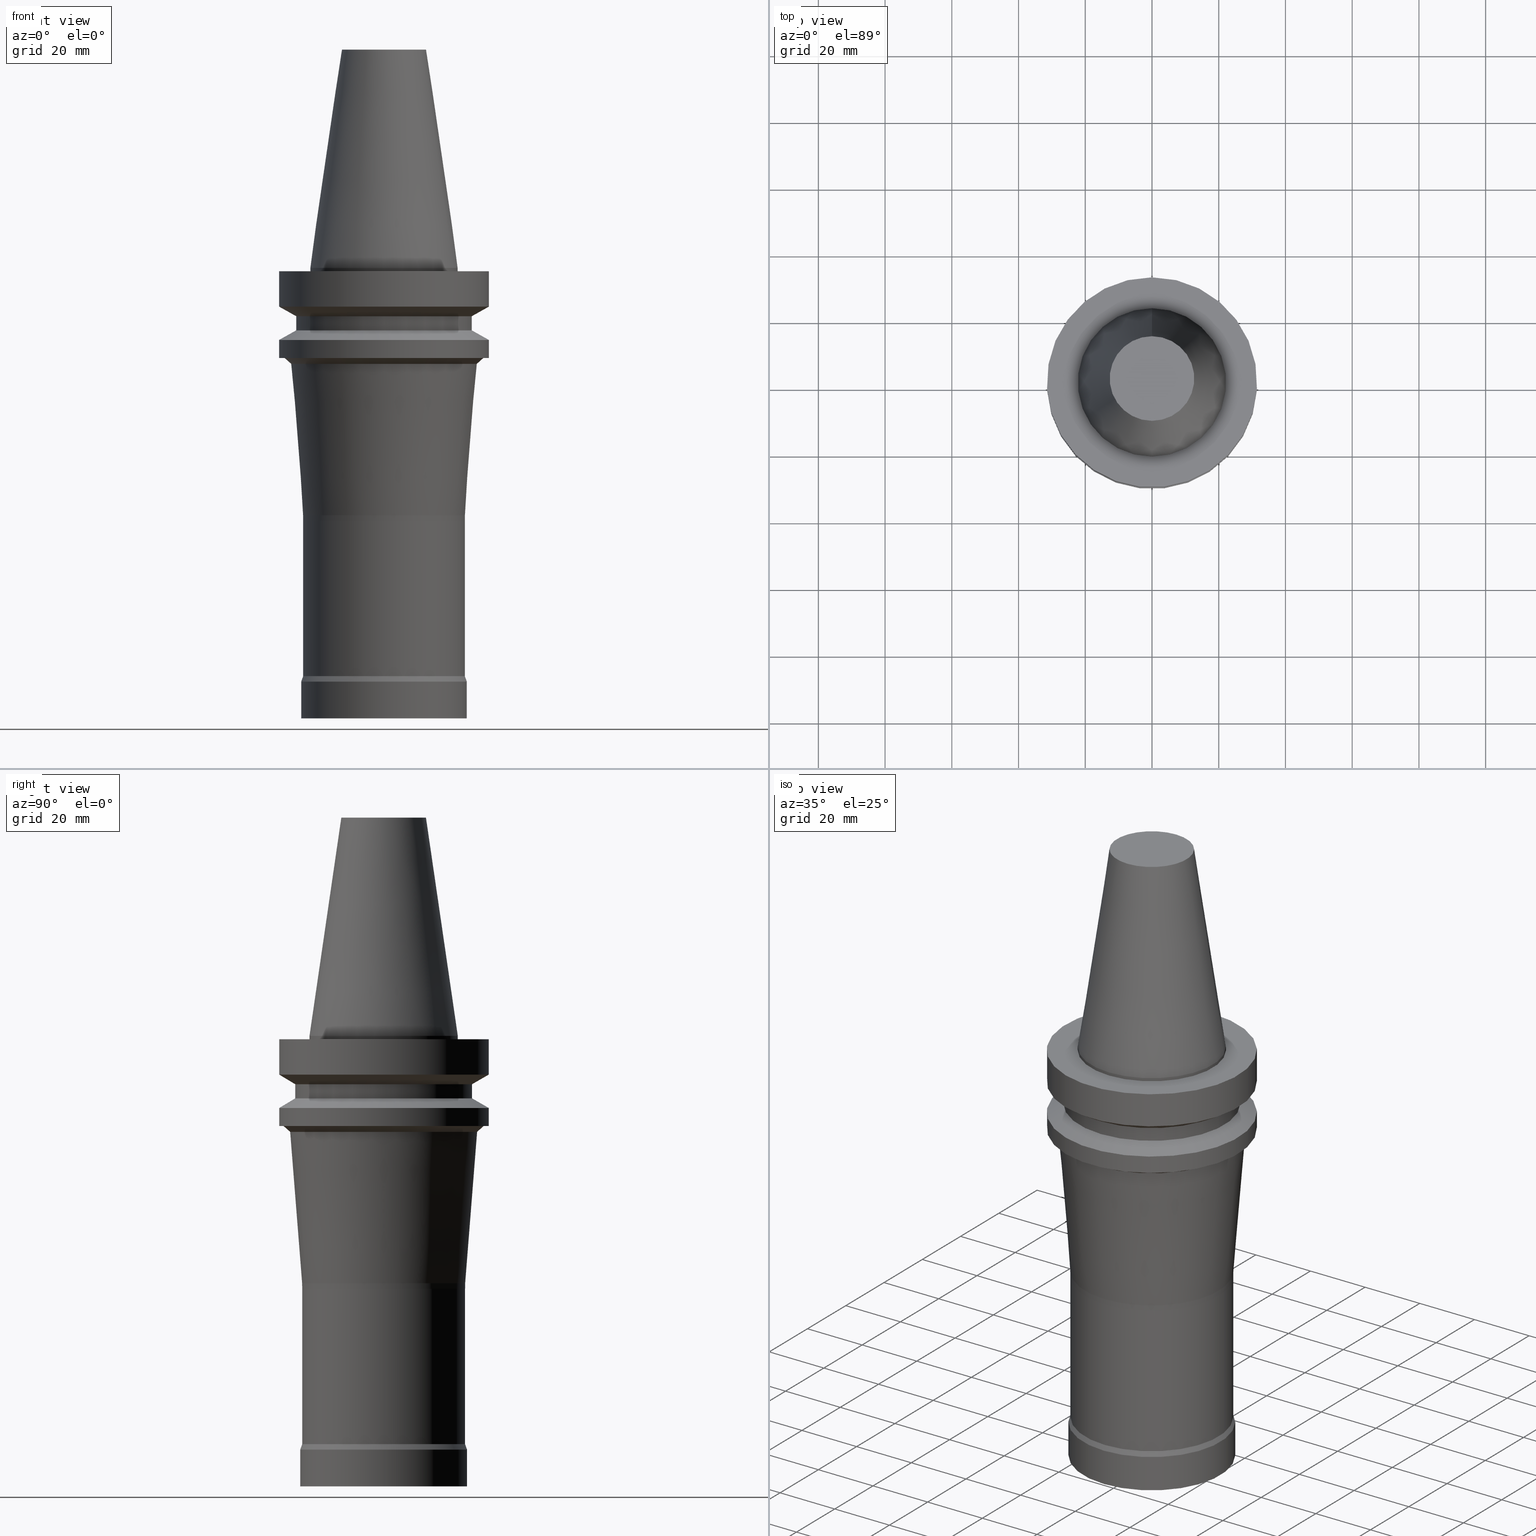
[diagram: canonical four-view strip — front | top / right | iso, engineering-drawing reading convention]
A machine part, canonical four-view strip (front | top / right | iso — engineering-drawing reading convention). The complete STEP part file that produces these views, byte-faithful:
ISO-10303-21;
HEADER;
FILE_DESCRIPTION((''),'1');
FILE_NAME('//Big_tech03/bigt/Translate/21_\X2\8F2A90ED7DDA\X0\-DXF/71_\X2\5207524A5DE55177\X0\/01_\X2\30A830F330C930DF30EB52A05DE5\X0\/01_\X2\30D530EB30AB30C330C830DF30EB\X0\ FCM/BBT/BBT40/BBT40-FCM50115-135.stp','2012-05-30T03:58:35',(''),(''),'Spatial Interop R18','Kubotek KeyCreator V8.5.1 (14335)',' ');
FILE_SCHEMA(('CONFIG_CONTROL_DESIGN'));
ENDSEC;
DATA;
#1=DESIGN_CONTEXT('',#27,'design');
#2=APPLICATION_PROTOCOL_DEFINITION('INTERNATIONAL STANDARD','config_control_design',1994,#27);
#3=PRODUCT_CATEGORY_RELATIONSHIP('NONE','NONE',#28,#29);
#4=DATE_AND_TIME(#30,#31);
#5=DATE_TIME_ROLE('creation_date');
#6=DATE_TIME_ROLE('classification_date');
#7=PERSON_AND_ORGANIZATION_ROLE('creator');
#8=PERSON_AND_ORGANIZATION_ROLE('design_supplier');
#9=PERSON_AND_ORGANIZATION_ROLE('classification_officer');
#10=PERSON_AND_ORGANIZATION_ROLE('design_owner');
#11=APPROVAL_PERSON_ORGANIZATION(#32,#33,#34);
#12=APPROVAL_DATE_TIME(#4,#33);
#13=CC_DESIGN_APPROVAL(#33,(#35,#36,#37));
#14=CC_DESIGN_DATE_AND_TIME_ASSIGNMENT(#4,#5,(#37));
#15=CC_DESIGN_DATE_AND_TIME_ASSIGNMENT(#4,#6,(#35));
#16=CC_DESIGN_PERSON_AND_ORGANIZATION_ASSIGNMENT(#32,#10,(#38));
#17=CC_DESIGN_PERSON_AND_ORGANIZATION_ASSIGNMENT(#32,#7,(#37));
#18=CC_DESIGN_PERSON_AND_ORGANIZATION_ASSIGNMENT(#32,#7,(#36));
#19=CC_DESIGN_PERSON_AND_ORGANIZATION_ASSIGNMENT(#32,#8,(#36));
#20=CC_DESIGN_SECURITY_CLASSIFICATION(#35,(#36));
#21=CC_DESIGN_PERSON_AND_ORGANIZATION_ASSIGNMENT(#32,#9,(#35));
#22=SHAPE_DEFINITION_REPRESENTATION(#39,#40);
#23= (GEOMETRIC_REPRESENTATION_CONTEXT(3)GLOBAL_UNCERTAINTY_ASSIGNED_CONTEXT((#43))GLOBAL_UNIT_ASSIGNED_CONTEXT((#45,#46,#47))REPRESENTATION_CONTEXT('NONE','WORKSPACE'));
#27=APPLICATION_CONTEXT('CONFIGURATION CONTROLLED 3D DESIGNS OF MECHANICAL PARTS AND ASSEMBLIES');
#28=PRODUCT_CATEGORY('part','NONE');
#29=PRODUCT_RELATED_PRODUCT_CATEGORY('detail',' ',(#38));
#30=CALENDAR_DATE(2012,30,4);
#31=LOCAL_TIME(12,58,35.0,#49);
#32=PERSON_AND_ORGANIZATION(#50,#51);
#33=APPROVAL(#52,'SOLID MODEL');
#34=APPROVAL_ROLE('APPROVED');
#35=SECURITY_CLASSIFICATION('','',#53);
#36=PRODUCT_DEFINITION_FORMATION_WITH_SPECIFIED_SOURCE(' ','NONE',#38,.NOT_KNOWN.);
#37=PRODUCT_DEFINITION('NONE','NONE',#36,#1);
#38=PRODUCT('1','1','PART-1-DESC',(#54));
#39=PRODUCT_DEFINITION_SHAPE('NONE','NONE',#37);
#40=ADVANCED_BREP_SHAPE_REPRESENTATION('1',(#55,#56),#23);
#43=UNCERTAINTY_MEASURE_WITH_UNIT(LENGTH_MEASURE(1.0E-006),#45,'','');
#45= (CONVERSION_BASED_UNIT('MILLIMETRE',#59)LENGTH_UNIT()NAMED_UNIT(#62));
#46= (NAMED_UNIT(#64)PLANE_ANGLE_UNIT()SI_UNIT($,.RADIAN.));
#47= (NAMED_UNIT(#64)SOLID_ANGLE_UNIT()SI_UNIT($,.STERADIAN.));
#49=COORDINATED_UNIVERSAL_TIME_OFFSET(9,0,.AHEAD.);
#50=PERSON('','UNSPECIFIED',$,$,$,$);
#51=ORGANIZATION('UNSPECIFIED','UNSPECIFIED','UNSPECIFIED');
#52=APPROVAL_STATUS('approved');
#53=SECURITY_CLASSIFICATION_LEVEL('unclassified');
#54=MECHANICAL_CONTEXT('',#27,'mechanical');
#55=MANIFOLD_SOLID_BREP('1',#70);
#56=AXIS2_PLACEMENT_3D('',#71,#72,#73);
#59=LENGTH_MEASURE_WITH_UNIT(LENGTH_MEASURE(1.0),#74);
#62=DIMENSIONAL_EXPONENTS(1.0,0.0,0.0,0.0,0.0,0.0,0.0);
#64=DIMENSIONAL_EXPONENTS(0.0,0.0,0.0,0.0,0.0,0.0,0.0);
#70=CLOSED_SHELL('',(#75,#76,#77,#78,#79,#80,#81,#82,#83,#84,#85,#86,#87,#88,#89,#90,#91));
#71=CARTESIAN_POINT('',(0.0,0.0,0.0));
#72=DIRECTION('',(0.0,0.0,1.0));
#73=DIRECTION('',(1.0,0.0,0.0));
#74= (NAMED_UNIT(#62)LENGTH_UNIT()SI_UNIT(.MILLI.,.METRE.));
#75=ADVANCED_FACE('',(#93,#94),#95,.T.);
#76=ADVANCED_FACE('',(#96,#97),#98,.T.);
#77=ADVANCED_FACE('',(#99,#100),#101,.T.);
#78=ADVANCED_FACE('',(#102,#103),#104,.T.);
#79=ADVANCED_FACE('',(#105,#106),#107,.T.);
#80=ADVANCED_FACE('',(#108,#109),#110,.T.);
#81=ADVANCED_FACE('',(#111,#112),#113,.T.);
#82=ADVANCED_FACE('',(#114,#115),#116,.T.);
#83=ADVANCED_FACE('',(#117,#118),#119,.T.);
#84=ADVANCED_FACE('',(#120,#121),#122,.T.);
#85=ADVANCED_FACE('',(#123,#124),#125,.T.);
#86=ADVANCED_FACE('',(#126,#127),#128,.T.);
#87=ADVANCED_FACE('',(#129,#130),#131,.T.);
#88=ADVANCED_FACE('',(#132),#133,.T.);
#89=ADVANCED_FACE('',(#134,#135),#136,.T.);
#90=ADVANCED_FACE('',(#137),#138,.T.);
#91=ADVANCED_FACE('',(#139,#140),#141,.T.);
#93=FACE_OUTER_BOUND('',#142,.T.);
#94=FACE_BOUND('',#143,.T.);
#95=PLANE('',#144);
#96=FACE_BOUND('',#145,.T.);
#97=FACE_BOUND('',#146,.T.);
#98=CYLINDRICAL_SURFACE('',#147,31.5);
#99=FACE_BOUND('',#148,.T.);
#100=FACE_BOUND('',#149,.T.);
#101=CONICAL_SURFACE('',#150,29.0,1.04719755058882);
#102=FACE_BOUND('',#151,.T.);
#103=FACE_BOUND('',#152,.T.);
#104=CYLINDRICAL_SURFACE('',#153,26.5);
#105=FACE_BOUND('',#154,.T.);
#106=FACE_BOUND('',#155,.T.);
#107=CONICAL_SURFACE('',#156,29.0,1.04719755058882);
#108=FACE_BOUND('',#157,.T.);
#109=FACE_BOUND('',#158,.T.);
#110=CYLINDRICAL_SURFACE('',#159,31.5);
#111=FACE_BOUND('',#160,.T.);
#112=FACE_OUTER_BOUND('',#161,.T.);
#113=PLANE('',#162);
#114=FACE_BOUND('',#163,.T.);
#115=FACE_BOUND('',#164,.T.);
#116=CONICAL_SURFACE('',#165,29.007730230711,0.84760833420394);
#117=FACE_BOUND('',#166,.T.);
#118=FACE_BOUND('',#167,.T.);
#119=CONICAL_SURFACE('',#168,26.2216072133036,0.0788715157919261);
#120=FACE_BOUND('',#169,.T.);
#121=FACE_BOUND('',#170,.T.);
#122=CONICAL_SURFACE('',#171,24.4138769825926,0.0166602918453237);
#123=FACE_BOUND('',#172,.T.);
#124=FACE_BOUND('',#173,.T.);
#125=CYLINDRICAL_SURFACE('',#174,24.4);
#126=FACE_BOUND('',#175,.T.);
#127=FACE_BOUND('',#176,.T.);
#128=CONICAL_SURFACE('',#177,24.7,0.349471099112729);
#129=FACE_BOUND('',#178,.T.);
#130=FACE_BOUND('',#179,.T.);
#131=CYLINDRICAL_SURFACE('',#180,25.0);
#132=FACE_OUTER_BOUND('',#181,.T.);
#133=PLANE('',#182);
#134=FACE_BOUND('',#183,.T.);
#135=FACE_BOUND('',#184,.T.);
#136=CYLINDRICAL_SURFACE('',#185,22.225);
#137=FACE_OUTER_BOUND('',#186,.T.);
#138=PLANE('',#187);
#139=FACE_BOUND('',#188,.T.);
#140=FACE_BOUND('',#189,.T.);
#141=CONICAL_SURFACE('',#190,17.4562500026599,0.144812498159292);
#142=EDGE_LOOP('',(#191));
#143=EDGE_LOOP('',(#192));
#144=AXIS2_PLACEMENT_3D('',#193,#194,#195);
#145=EDGE_LOOP('',(#196));
#146=EDGE_LOOP('',(#197));
#147=AXIS2_PLACEMENT_3D('',#198,#199,#200);
#148=EDGE_LOOP('',(#201));
#149=EDGE_LOOP('',(#202));
#150=AXIS2_PLACEMENT_3D('',#203,#204,#205);
#151=EDGE_LOOP('',(#206));
#152=EDGE_LOOP('',(#207));
#153=AXIS2_PLACEMENT_3D('',#208,#209,#210);
#154=EDGE_LOOP('',(#211));
#155=EDGE_LOOP('',(#212));
#156=AXIS2_PLACEMENT_3D('',#213,#214,#215);
#157=EDGE_LOOP('',(#216));
#158=EDGE_LOOP('',(#217));
#159=AXIS2_PLACEMENT_3D('',#218,#219,#220);
#160=EDGE_LOOP('',(#221));
#161=EDGE_LOOP('',(#222));
#162=AXIS2_PLACEMENT_3D('',#223,#224,#225);
#163=EDGE_LOOP('',(#226));
#164=EDGE_LOOP('',(#227));
#165=AXIS2_PLACEMENT_3D('',#228,#229,#230);
#166=EDGE_LOOP('',(#231));
#167=EDGE_LOOP('',(#232));
#168=AXIS2_PLACEMENT_3D('',#233,#234,#235);
#169=EDGE_LOOP('',(#236));
#170=EDGE_LOOP('',(#237));
#171=AXIS2_PLACEMENT_3D('',#238,#239,#240);
#172=EDGE_LOOP('',(#241));
#173=EDGE_LOOP('',(#242));
#174=AXIS2_PLACEMENT_3D('',#243,#244,#245);
#175=EDGE_LOOP('',(#246));
#176=EDGE_LOOP('',(#247));
#177=AXIS2_PLACEMENT_3D('',#248,#249,#250);
#178=EDGE_LOOP('',(#251));
#179=EDGE_LOOP('',(#252));
#180=AXIS2_PLACEMENT_3D('',#253,#254,#255);
#181=EDGE_LOOP('',(#256));
#182=AXIS2_PLACEMENT_3D('',#257,#258,#259);
#183=EDGE_LOOP('',(#260));
#184=EDGE_LOOP('',(#261));
#185=AXIS2_PLACEMENT_3D('',#262,#263,#264);
#186=EDGE_LOOP('',(#265));
#187=AXIS2_PLACEMENT_3D('',#266,#267,#268);
#188=EDGE_LOOP('',(#269));
#189=EDGE_LOOP('',(#270));
#190=AXIS2_PLACEMENT_3D('',#271,#272,#273);
#191=ORIENTED_EDGE('',*,*,#274,.F.);
#192=ORIENTED_EDGE('',*,*,#275,.T.);
#193=CARTESIAN_POINT('',(6.12323399573673E-017,26.8625,-0.999999999999997));
#194=DIRECTION('',(-6.12323399573677E-017,-1.22464679914735E-016,1.0));
#195=DIRECTION('',(1.23259516440783E-032,-1.0,-1.22464679914735E-016));
#196=ORIENTED_EDGE('',*,*,#276,.F.);
#197=ORIENTED_EDGE('',*,*,#274,.T.);
#198=CARTESIAN_POINT('',(3.85763741731416E-016,7.71527483462832E-016,-6.3));
#199=DIRECTION('',(-6.12323399573677E-017,-1.22464679914735E-016,1.0));
#200=DIRECTION('',(-1.23259516440783E-032,1.0,1.22464679914735E-016));
#201=ORIENTED_EDGE('',*,*,#277,.F.);
#202=ORIENTED_EDGE('',*,*,#276,.T.);
#203=CARTESIAN_POINT('',(7.9867641352326E-016,1.59735282704652E-015,-13.043375675));
#204=DIRECTION('',(-6.12323399573677E-017,-1.22464679914735E-016,1.0));
#205=DIRECTION('',(-1.23259516440783E-032,1.0,1.22464679914735E-016));
#206=ORIENTED_EDGE('',*,*,#278,.F.);
#207=ORIENTED_EDGE('',*,*,#277,.T.);
#208=CARTESIAN_POINT('',(1.0164568432923E-015,2.03291368658461E-015,-16.6));
#209=DIRECTION('',(-6.12323399573677E-017,-1.22464679914735E-016,1.0));
#210=DIRECTION('',(-1.23259516440783E-032,1.0,1.22464679914735E-016));
#211=ORIENTED_EDGE('',*,*,#279,.F.);
#212=ORIENTED_EDGE('',*,*,#278,.T.);
#213=CARTESIAN_POINT('',(1.23423727306135E-015,2.46847454612269E-015,-20.156624325));
#214=DIRECTION('',(6.12323399573677E-017,1.22464679914735E-016,-1.0));
#215=DIRECTION('',(-1.23259516440783E-032,1.0,1.22464679914735E-016));
#216=ORIENTED_EDGE('',*,*,#280,.F.);
#217=ORIENTED_EDGE('',*,*,#279,.T.);
#218=CARTESIAN_POINT('',(1.48794586096403E-015,2.97589172192807E-015,-24.3));
#219=DIRECTION('',(-6.12323399573677E-017,-1.22464679914735E-016,1.0));
#220=DIRECTION('',(-1.23259516440783E-032,1.0,1.22464679914735E-016));
#221=ORIENTED_EDGE('',*,*,#281,.F.);
#222=ORIENTED_EDGE('',*,*,#280,.T.);
#223=CARTESIAN_POINT('',(1.65327317884893E-015,30.75,-27.0));
#224=DIRECTION('',(6.12323399573677E-017,1.22464679914735E-016,-1.0));
#225=DIRECTION('',(-1.23259516440783E-032,1.0,1.22464679914735E-016));
#226=ORIENTED_EDGE('',*,*,#282,.F.);
#227=ORIENTED_EDGE('',*,*,#281,.T.);
#228=CARTESIAN_POINT('',(1.7069066113328E-015,3.4138132226656E-015,-27.8759004232275));
#229=DIRECTION('',(-6.12323399573677E-017,-1.22464679914735E-016,1.0));
#230=DIRECTION('',(-1.23259516440783E-032,1.0,1.22464679914735E-016));
#231=ORIENTED_EDGE('',*,*,#283,.F.);
#232=ORIENTED_EDGE('',*,*,#282,.T.);
#233=CARTESIAN_POINT('',(3.150318994572E-015,6.300637989144E-015,-51.4486135392732));
#234=DIRECTION('',(-6.12323399573677E-017,-1.22464679914735E-016,1.0));
#235=DIRECTION('',(-1.23259516440783E-032,1.0,1.22464679914735E-016));
#236=ORIENTED_EDGE('',*,*,#284,.F.);
#237=ORIENTED_EDGE('',*,*,#283,.T.);
#238=CARTESIAN_POINT('',(4.59109594131173E-015,9.18219188262345E-015,-74.9782867110456));
#239=DIRECTION('',(-6.12323399573676E-017,-1.22464679914735E-016,1.0));
#240=DIRECTION('',(-1.23259516440783E-032,1.0,1.22464679914735E-016));
#241=ORIENTED_EDGE('',*,*,#285,.F.);
#242=ORIENTED_EDGE('',*,*,#284,.T.);
#243=CARTESIAN_POINT('',(6.0670452723855E-015,1.2134090544771E-014,-99.08236851));
#244=DIRECTION('',(-6.12323399573677E-017,-1.22464679914735E-016,1.0));
#245=DIRECTION('',(-1.23259516440783E-032,1.0,1.22464679914735E-016));
#246=ORIENTED_EDGE('',*,*,#286,.F.);
#247=ORIENTED_EDGE('',*,*,#285,.T.);
#248=CARTESIAN_POINT('',(7.54240338109424E-015,1.50848067621885E-014,-123.176794915));
#249=DIRECTION('',(6.12323399573677E-017,1.22464679914735E-016,-1.0));
#250=DIRECTION('',(-1.23259516440783E-032,1.0,1.22464679914735E-016));
#251=ORIENTED_EDGE('',*,*,#287,.F.);
#252=ORIENTED_EDGE('',*,*,#286,.T.);
#253=CARTESIAN_POINT('',(7.92958802447911E-015,1.58591760489582E-014,-129.5));
#254=DIRECTION('',(-6.12323399573677E-017,-1.22464679914735E-016,1.0));
#255=DIRECTION('',(-1.23259516440783E-032,1.0,1.22464679914735E-016));
#256=ORIENTED_EDGE('',*,*,#287,.T.);
#257=CARTESIAN_POINT('',(8.26636589424463E-015,12.5,-135.0));
#258=DIRECTION('',(6.12323399573677E-017,1.22464679914735E-016,-1.0));
#259=DIRECTION('',(-1.23259516440783E-032,1.0,1.22464679914735E-016));
#260=ORIENTED_EDGE('',*,*,#275,.F.);
#261=ORIENTED_EDGE('',*,*,#288,.T.);
#262=CARTESIAN_POINT('',(3.06161699786839E-017,6.12323399573677E-017,-0.500000000000001));
#263=DIRECTION('',(-6.12323399573677E-017,-1.22464679914735E-016,1.0));
#264=DIRECTION('',(-1.23259516440783E-032,1.0,1.22464679914735E-016));
#265=ORIENTED_EDGE('',*,*,#289,.F.);
#266=CARTESIAN_POINT('',(-4.00459503321185E-015,6.34375000265984,65.4));
#267=DIRECTION('',(-6.12323399573677E-017,-1.22464679914735E-016,1.0));
#268=DIRECTION('',(1.23259516440783E-032,-1.0,-1.22464679914735E-016));
#269=ORIENTED_EDGE('',*,*,#288,.F.);
#270=ORIENTED_EDGE('',*,*,#289,.T.);
#271=CARTESIAN_POINT('',(-2.00229751660592E-015,-4.00459503321184E-015,32.7));
#272=DIRECTION('',(6.12323399573677E-017,1.22464679914735E-016,-1.0));
#273=DIRECTION('',(-1.23259516440783E-032,1.0,1.22464679914735E-016));
#274=EDGE_CURVE('',#290,#290,#291,.T.);
#275=EDGE_CURVE('',#292,#292,#293,.T.);
#276=EDGE_CURVE('',#294,#294,#295,.T.);
#277=EDGE_CURVE('',#296,#296,#297,.T.);
#278=EDGE_CURVE('',#298,#298,#299,.T.);
#279=EDGE_CURVE('',#300,#300,#301,.T.);
#280=EDGE_CURVE('',#302,#302,#303,.T.);
#281=EDGE_CURVE('',#304,#304,#305,.T.);
#282=EDGE_CURVE('',#306,#306,#307,.T.);
#283=EDGE_CURVE('',#308,#308,#309,.T.);
#284=EDGE_CURVE('',#310,#310,#311,.T.);
#285=EDGE_CURVE('',#312,#312,#313,.T.);
#286=EDGE_CURVE('',#314,#314,#315,.T.);
#287=EDGE_CURVE('',#316,#316,#317,.T.);
#288=EDGE_CURVE('',#318,#318,#319,.T.);
#289=EDGE_CURVE('',#320,#320,#321,.T.);
#290=VERTEX_POINT('',#322);
#291=CIRCLE('',#323,31.5);
#292=VERTEX_POINT('',#324);
#293=CIRCLE('',#325,22.225);
#294=VERTEX_POINT('',#326);
#295=CIRCLE('',#327,31.5);
#296=VERTEX_POINT('',#328);
#297=CIRCLE('',#329,26.5);
#298=VERTEX_POINT('',#330);
#299=CIRCLE('',#331,26.5);
#300=VERTEX_POINT('',#332);
#301=CIRCLE('',#333,31.5);
#302=VERTEX_POINT('',#334);
#303=CIRCLE('',#335,31.5);
#304=VERTEX_POINT('',#336);
#305=CIRCLE('',#337,30.0);
#306=VERTEX_POINT('',#338);
#307=CIRCLE('',#339,28.0154604614219);
#308=VERTEX_POINT('',#340);
#309=CIRCLE('',#341,24.4277539651853);
#310=VERTEX_POINT('',#342);
#311=CIRCLE('',#343,24.4);
#312=VERTEX_POINT('',#344);
#313=CIRCLE('',#345,24.4);
#314=VERTEX_POINT('',#346);
#315=CIRCLE('',#347,25.0);
#316=VERTEX_POINT('',#348);
#317=CIRCLE('',#349,25.0);
#318=VERTEX_POINT('',#350);
#319=CIRCLE('',#351,22.225);
#320=VERTEX_POINT('',#352);
#321=CIRCLE('',#353,12.6875000053197);
#322=CARTESIAN_POINT('',(6.12323399573673E-017,31.5,-0.999999999999996));
#323=AXIS2_PLACEMENT_3D('',#354,#355,#356);
#324=CARTESIAN_POINT('',(6.12323399573674E-017,22.225,-0.999999999999997));
#325=AXIS2_PLACEMENT_3D('',#357,#358,#359);
#326=CARTESIAN_POINT('',(7.10295143505464E-016,31.5,-11.6));
#327=AXIS2_PLACEMENT_3D('',#360,#361,#362);
#328=CARTESIAN_POINT('',(8.87057683541055E-016,26.5,-14.48675135));
#329=AXIS2_PLACEMENT_3D('',#363,#364,#365);
#330=CARTESIAN_POINT('',(1.14585600304355E-015,26.5,-18.71324865));
#331=AXIS2_PLACEMENT_3D('',#366,#367,#368);
#332=CARTESIAN_POINT('',(1.32261854307914E-015,31.5,-21.6));
#333=AXIS2_PLACEMENT_3D('',#369,#370,#371);
#334=CARTESIAN_POINT('',(1.65327317884893E-015,31.5,-27.0));
#335=AXIS2_PLACEMENT_3D('',#372,#373,#374);
#336=CARTESIAN_POINT('',(1.65327317884893E-015,30.0,-27.0));
#337=AXIS2_PLACEMENT_3D('',#375,#376,#377);
#338=CARTESIAN_POINT('',(1.76054004381667E-015,28.015460461422,-28.7518008464551));
#339=AXIS2_PLACEMENT_3D('',#378,#379,#380);
#340=CARTESIAN_POINT('',(4.54009794532733E-015,24.4277539651853,-74.1454262320912));
#341=AXIS2_PLACEMENT_3D('',#381,#382,#383);
#342=CARTESIAN_POINT('',(4.64209393729612E-015,24.4,-75.81114719));
#343=AXIS2_PLACEMENT_3D('',#384,#385,#386);
#344=CARTESIAN_POINT('',(7.49199660747488E-015,24.4,-122.35358983));
#345=AXIS2_PLACEMENT_3D('',#387,#388,#389);
#346=CARTESIAN_POINT('',(7.59281015471359E-015,25.0,-124.0));
#347=AXIS2_PLACEMENT_3D('',#390,#391,#392);
#348=CARTESIAN_POINT('',(8.26636589424463E-015,25.0,-135.0));
#349=AXIS2_PLACEMENT_3D('',#393,#394,#395);
#350=CARTESIAN_POINT('',(-1.88218999349326E-031,22.225,1.32177751110499E-015));
#351=AXIS2_PLACEMENT_3D('',#396,#397,#398);
#352=CARTESIAN_POINT('',(-4.00459503321185E-015,12.6875000053197,65.4));
#353=AXIS2_PLACEMENT_3D('',#399,#400,#401);
#354=CARTESIAN_POINT('',(6.12323399573677E-017,1.22464679914735E-016,-1.0));
#355=DIRECTION('',(6.12323399573677E-017,1.22464679914735E-016,-1.0));
#356=DIRECTION('',(-1.23259516440783E-032,1.0,1.22464679914735E-016));
#357=CARTESIAN_POINT('',(6.12323399573677E-017,1.22464679914735E-016,-1.0));
#358=DIRECTION('',(6.12323399573677E-017,1.22464679914735E-016,-1.0));
#359=DIRECTION('',(-1.23259516440783E-032,1.0,1.22464679914735E-016));
#360=CARTESIAN_POINT('',(7.10295143505465E-016,1.42059028701093E-015,-11.6));
#361=DIRECTION('',(6.12323399573677E-017,1.22464679914735E-016,-1.0));
#362=DIRECTION('',(-1.23259516440783E-032,1.0,1.22464679914735E-016));
#363=CARTESIAN_POINT('',(8.87057683541055E-016,1.77411536708211E-015,-14.48675135));
#364=DIRECTION('',(6.12323399573677E-017,1.22464679914735E-016,-1.0));
#365=DIRECTION('',(-1.23259516440783E-032,1.0,1.22464679914735E-016));
#366=CARTESIAN_POINT('',(1.14585600304355E-015,2.2917120060871E-015,-18.71324865));
#367=DIRECTION('',(6.12323399573677E-017,1.22464679914735E-016,-1.0));
#368=DIRECTION('',(-1.23259516440783E-032,1.0,1.22464679914735E-016));
#369=CARTESIAN_POINT('',(1.32261854307914E-015,2.64523708615828E-015,-21.6));
#370=DIRECTION('',(6.12323399573677E-017,1.22464679914735E-016,-1.0));
#371=DIRECTION('',(-1.23259516440783E-032,1.0,1.22464679914735E-016));
#372=CARTESIAN_POINT('',(1.65327317884893E-015,3.30654635769785E-015,-27.0));
#373=DIRECTION('',(6.12323399573677E-017,1.22464679914735E-016,-1.0));
#374=DIRECTION('',(-1.23259516440783E-032,1.0,1.22464679914735E-016));
#375=CARTESIAN_POINT('',(1.65327317884893E-015,3.30654635769785E-015,-27.0));
#376=DIRECTION('',(6.12323399573677E-017,1.22464679914735E-016,-1.0));
#377=DIRECTION('',(-1.23259516440783E-032,1.0,1.22464679914735E-016));
#378=CARTESIAN_POINT('',(1.76054004381667E-015,3.52108008763334E-015,-28.7518008464551));
#379=DIRECTION('',(6.12323399573677E-017,1.22464679914735E-016,-1.0));
#380=DIRECTION('',(-1.23259516440783E-032,1.0,1.22464679914735E-016));
#381=CARTESIAN_POINT('',(4.54009794532733E-015,9.08019589065467E-015,-74.1454262320912));
#382=DIRECTION('',(6.12323399573677E-017,1.22464679914735E-016,-1.0));
#383=DIRECTION('',(-1.23259516440783E-032,1.0,1.22464679914735E-016));
#384=CARTESIAN_POINT('',(4.64209393729612E-015,9.28418787459223E-015,-75.81114719));
#385=DIRECTION('',(6.12323399573677E-017,1.22464679914735E-016,-1.0));
#386=DIRECTION('',(-1.23259516440783E-032,1.0,1.22464679914735E-016));
#387=CARTESIAN_POINT('',(7.49199660747488E-015,1.49839932149498E-014,-122.35358983));
#388=DIRECTION('',(6.12323399573677E-017,1.22464679914735E-016,-1.0));
#389=DIRECTION('',(-1.23259516440783E-032,1.0,1.22464679914735E-016));
#390=CARTESIAN_POINT('',(7.59281015471359E-015,1.51856203094272E-014,-124.0));
#391=DIRECTION('',(6.12323399573677E-017,1.22464679914735E-016,-1.0));
#392=DIRECTION('',(-1.23259516440783E-032,1.0,1.22464679914735E-016));
#393=CARTESIAN_POINT('',(8.26636589424463E-015,1.65327317884893E-014,-135.0));
#394=DIRECTION('',(6.12323399573677E-017,1.22464679914735E-016,-1.0));
#395=DIRECTION('',(-1.23259516440783E-032,1.0,1.22464679914735E-016));
#396=CARTESIAN_POINT('',(8.5826711511335E-032,1.7165342302267E-031,-1.40165656858926E-015));
#397=DIRECTION('',(6.12323399573677E-017,1.22464679914735E-016,-1.0));
#398=DIRECTION('',(-1.23259516440783E-032,1.0,1.22464679914735E-016));
#399=CARTESIAN_POINT('',(-4.00459503321185E-015,-8.00919006642369E-015,65.4));
#400=DIRECTION('',(6.12323399573677E-017,1.22464679914735E-016,-1.0));
#401=DIRECTION('',(-1.23259516440783E-032,1.0,1.22464679914735E-016));
ENDSEC;
END-ISO-10303-21;
